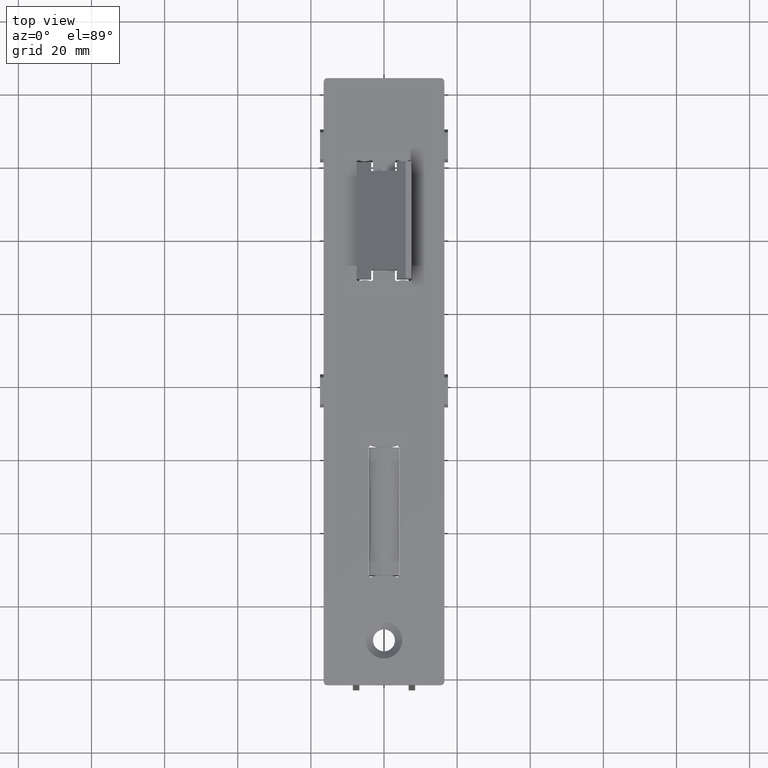
[diagram: clean part render]
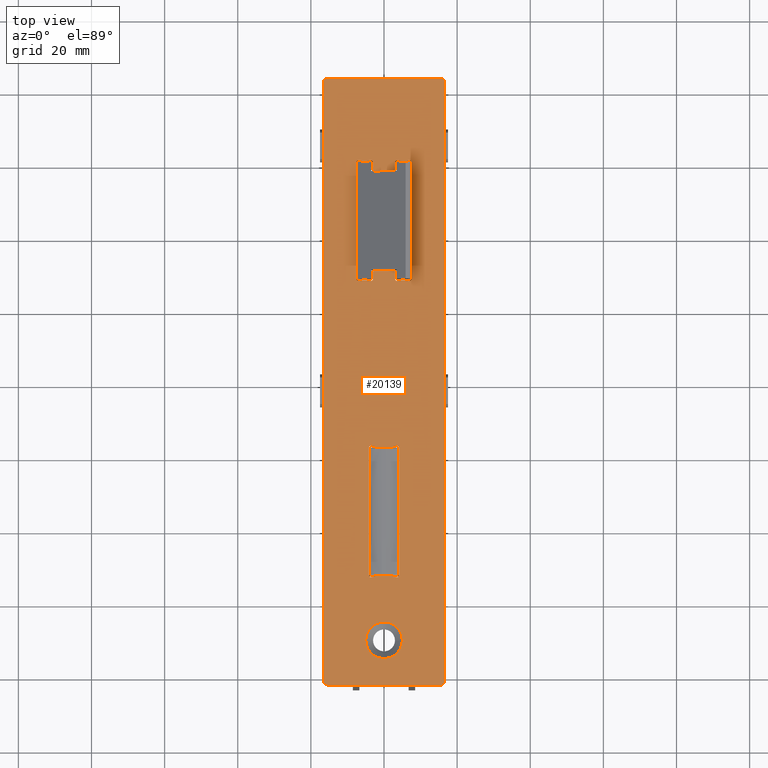
[diagram: same view with one face highlighted and labeled with its STEP entity id]
A machine part, top view. The second image highlights one B-rep face of the part: STEP entity #20139.
In plain terms, the highlighted planar face has unit normal (0, 0, 1).
Its self-contained STEP definition (entity closure, byte-faithful):
#24 = CARTESIAN_POINT ( 'NONE',  ( -3.000000000000000000, 30.12000000000002231, 1.500000000000000000 ) ) ;
#81 = DIRECTION ( 'NONE',  ( -1.000000000000000000, 0.000000000000000000, 0.000000000000000000 ) ) ;
#202 = VERTEX_POINT ( 'NONE', #19371 ) ;
#237 = DIRECTION ( 'NONE',  ( 1.000000000000000000, 0.000000000000000000, 0.000000000000000000 ) ) ;
#270 = AXIS2_PLACEMENT_3D ( 'NONE', #12204, #7760, #18419 ) ;
#287 = ORIENTED_EDGE ( 'NONE', *, *, #16663, .F. ) ;
#313 = CARTESIAN_POINT ( 'NONE',  ( -6.800000000000006040, 60.45913248941259610, 1.500000000000000000 ) ) ;
#333 = AXIS2_PLACEMENT_3D ( 'NONE', #15696, #3143, #9552 ) ;
#398 = EDGE_CURVE ( 'NONE', #13719, #17087, #12793, .T. ) ;
#440 = FACE_BOUND ( 'NONE', #13024, .T. ) ;
#589 = VECTOR ( 'NONE', #3154, 1000.000000000000000 ) ;
#638 = LINE ( 'NONE', #9338, #7911 ) ;
#720 = CARTESIAN_POINT ( 'NONE',  ( 0.000000000000000000, 0.000000000000000000, 1.500000000000000000 ) ) ;
#745 = AXIS2_PLACEMENT_3D ( 'NONE', #16177, #8530, #6921 ) ;
#761 = CARTESIAN_POINT ( 'NONE',  ( 2.700000000000001066, 57.87000000000002586, 1.500000000000000000 ) ) ;
#818 = CARTESIAN_POINT ( 'NONE',  ( -3.619999999999996110, -53.00499999999999545, 1.500000000000000000 ) ) ;
#839 = DIRECTION ( 'NONE',  ( 1.000000000000000000, 0.000000000000000000, 0.000000000000000000 ) ) ;
#894 = CIRCLE ( 'NONE', #7948, 0.2999999999999999334 ) ;
#895 = VERTEX_POINT ( 'NONE', #10533 ) ;
#902 = CARTESIAN_POINT ( 'NONE',  ( -3.474991485278918102, -17.52648925753080178, 1.500000000000000000 ) ) ;
#924 = AXIS2_PLACEMENT_3D ( 'NONE', #14307, #15828, #14108 ) ;
#947 = CARTESIAN_POINT ( 'NONE',  ( -5.300000000000005151, 64.58629237210178076, 1.500000000000000000 ) ) ;
#1000 = DIRECTION ( 'NONE',  ( 1.000000000000000000, 0.000000000000000000, 0.000000000000000000 ) ) ;
#1007 = DIRECTION ( 'NONE',  ( -0.000000000000000000, -0.000000000000000000, -1.000000000000000000 ) ) ;
#1165 = FACE_BOUND ( 'NONE', #4045, .T. ) ;
#1327 = CARTESIAN_POINT ( 'NONE',  ( 3.000000000000000000, 30.12000000000002231, 1.500000000000000000 ) ) ;
#1343 = CARTESIAN_POINT ( 'NONE',  ( 2.700000000000000178, 30.12000000000002231, 1.500000000000000000 ) ) ;
#1446 = CARTESIAN_POINT ( 'NONE',  ( 7.599999999999990763, 28.09130954904182076, 1.500000000000000000 ) ) ;
#1451 = VERTEX_POINT ( 'NONE', #14295 ) ;
#1475 = EDGE_CURVE ( 'NONE', #16140, #5855, #16350, .T. ) ;
#1486 = VERTEX_POINT ( 'NONE', #24 ) ;
#1534 = LINE ( 'NONE', #15567, #8620 ) ;
#1547 = CIRCLE ( 'NONE', #4762, 0.5963095490417917865 ) ;
#1565 = CARTESIAN_POINT ( 'NONE',  ( 4.119999999999996554, -18.00499999999996703, 1.500000000000000000 ) ) ;
#1581 = VERTEX_POINT ( 'NONE', #2110 ) ;
#1750 = CARTESIAN_POINT ( 'NONE',  ( -3.619999999999996110, -18.00499999999996703, 1.500000000000000000 ) ) ;
#1916 = CARTESIAN_POINT ( 'NONE',  ( -3.000000000000000000, 57.57000000000002160, 1.500000000000000000 ) ) ;
#1920 = DIRECTION ( 'NONE',  ( 1.000000000000000000, 0.000000000000000000, 0.000000000000000000 ) ) ;
#1990 = DIRECTION ( 'NONE',  ( 1.090767882666056980E-16, 1.000000000000000000, -0.000000000000000000 ) ) ;
#2086 = ORIENTED_EDGE ( 'NONE', *, *, #3440, .F. ) ;
#2110 = CARTESIAN_POINT ( 'NONE',  ( 15.49999999999998224, 83.00000000000001421, 1.500000000000000000 ) ) ;
#2155 = DIRECTION ( 'NONE',  ( 0.000000000000000000, 0.000000000000000000, 1.000000000000000000 ) ) ;
#2272 = CARTESIAN_POINT ( 'NONE',  ( 4.119999999999998330, -53.00499999999999545, 1.500000000000000000 ) ) ;
#2355 = ORIENTED_EDGE ( 'NONE', *, *, #9028, .F. ) ;
#2399 = EDGE_CURVE ( 'NONE', #13131, #8010, #13199, .T. ) ;
#2414 = EDGE_CURVE ( 'NONE', #6831, #3276, #16109, .T. ) ;
#2451 = DIRECTION ( 'NONE',  ( -0.9570214849383192890, 0.2900170294421592354, -0.000000000000000000 ) ) ;
#2468 = ORIENTED_EDGE ( 'NONE', *, *, #6575, .T. ) ;
#2557 = VECTOR ( 'NONE', #10401, 1000.000000000000000 ) ;
#2589 = DIRECTION ( 'NONE',  ( 1.000000000000000000, 0.000000000000000000, 0.000000000000000000 ) ) ;
#2646 = CARTESIAN_POINT ( 'NONE',  ( -3.000000000000000444, 57.87000000000002586, 1.500000000000000000 ) ) ;
#2706 = ORIENTED_EDGE ( 'NONE', *, *, #12242, .F. ) ;
#2714 = LINE ( 'NONE', #17606, #2951 ) ;
#2728 = EDGE_CURVE ( 'NONE', #6339, #8702, #4190, .T. ) ;
#2736 = VERTEX_POINT ( 'NONE', #8346 ) ;
#2752 = ORIENTED_EDGE ( 'NONE', *, *, #8784, .F. ) ;
#2859 = DIRECTION ( 'NONE',  ( -0.000000000000000000, -0.000000000000000000, -1.000000000000000000 ) ) ;
#2863 = EDGE_CURVE ( 'NONE', #8702, #1581, #6184, .T. ) ;
#2864 = CARTESIAN_POINT ( 'NONE',  ( -5.299999999999999822, 23.40370762789826387, 1.500000000000000000 ) ) ;
#2874 = CARTESIAN_POINT ( 'NONE',  ( 3.474991485278918102, -53.48351074246915715, 1.500000000000000000 ) ) ;
#2877 = CIRCLE ( 'NONE', #17483, 0.3000000000000031530 ) ;
#2951 = VECTOR ( 'NONE', #15858, 1000.000000000000000 ) ;
#3058 = CARTESIAN_POINT ( 'NONE',  ( -3.474991485278918990, -53.48351074246915715, 1.500000000000000000 ) ) ;
#3143 = DIRECTION ( 'NONE',  ( 0.000000000000000000, 0.000000000000000000, 1.000000000000000000 ) ) ;
#3154 = DIRECTION ( 'NONE',  ( -1.000000000000000000, -0.000000000000000000, -0.000000000000000000 ) ) ;
#3256 = LINE ( 'NONE', #13880, #13705 ) ;
#3260 = EDGE_CURVE ( 'NONE', #2736, #1486, #19963, .T. ) ;
#3276 = VERTEX_POINT ( 'NONE', #5341 ) ;
#3334 = LINE ( 'NONE', #16352, #4293 ) ;
#3440 = EDGE_CURVE ( 'NONE', #10630, #8923, #19697, .T. ) ;
#3501 = EDGE_LOOP ( 'NONE', ( #17685, #11899, #2468, #13106, #14168, #18304, #7254, #6393 ) ) ;
#3503 = VECTOR ( 'NONE', #7078, 1000.000000000000000 ) ;
#3559 = EDGE_CURVE ( 'NONE', #15692, #13719, #2714, .T. ) ;
#3606 = DIRECTION ( 'NONE',  ( -0.000000000000000000, 0.000000000000000000, 1.000000000000000000 ) ) ;
#3623 = VERTEX_POINT ( 'NONE', #17883 ) ;
#3650 = VERTEX_POINT ( 'NONE', #9003 ) ;
#3728 = EDGE_CURVE ( 'NONE', #18080, #1486, #10044, .T. ) ;
#3790 = AXIS2_PLACEMENT_3D ( 'NONE', #8404, #16107, #839 ) ;
#3854 = CARTESIAN_POINT ( 'NONE',  ( 16.49999999999998224, 82.00000000000001421, 1.500000000000000000 ) ) ;
#3890 = ORIENTED_EDGE ( 'NONE', *, *, #7780, .F. ) ;
#3919 = VERTEX_POINT ( 'NONE', #14625 ) ;
#3924 = AXIS2_PLACEMENT_3D ( 'NONE', #1343, #15336, #19720 ) ;
#3937 = ORIENTED_EDGE ( 'NONE', *, *, #20019, .F. ) ;
#3969 = VERTEX_POINT ( 'NONE', #1565 ) ;
#3982 = EDGE_CURVE ( 'NONE', #11996, #10630, #8544, .T. ) ;
#3992 = LINE ( 'NONE', #10322, #3503 ) ;
#4045 = EDGE_LOOP ( 'NONE', ( #13621 ) ) ;
#4068 = DIRECTION ( 'NONE',  ( -0.000000000000000000, 0.000000000000000000, 1.000000000000000000 ) ) ;
#4190 = LINE ( 'NONE', #11593, #17041 ) ;
#4249 = DIRECTION ( 'NONE',  ( -0.000000000000000000, 0.000000000000000000, 1.000000000000000000 ) ) ;
#4257 = AXIS2_PLACEMENT_3D ( 'NONE', #19431, #4249, #15120 ) ;
#4293 = VECTOR ( 'NONE', #18040, 1000.000000000000000 ) ;
#4311 = CIRCLE ( 'NONE', #18754, 0.3000000000000033751 ) ;
#4404 = AXIS2_PLACEMENT_3D ( 'NONE', #17528, #9658, #18977 ) ;
#4428 = DIRECTION ( 'NONE',  ( -0.000000000000000000, -0.000000000000000000, -1.000000000000000000 ) ) ;
#4462 = ORIENTED_EDGE ( 'NONE', *, *, #3728, .F. ) ;
#4520 = ORIENTED_EDGE ( 'NONE', *, *, #8696, .F. ) ;
#4530 = VECTOR ( 'NONE', #1990, 1000.000000000000000 ) ;
#4542 = AXIS2_PLACEMENT_3D ( 'NONE', #13038, #2155, #12955 ) ;
#4652 = ORIENTED_EDGE ( 'NONE', *, *, #11942, .F. ) ;
#4659 = DIRECTION ( 'NONE',  ( 1.000000000000000000, 0.000000000000000000, 0.000000000000000000 ) ) ;
#4762 = AXIS2_PLACEMENT_3D ( 'NONE', #12806, #18741, #14167 ) ;
#4782 = DIRECTION ( 'NONE',  ( -1.000000000000000000, 0.000000000000000000, 0.000000000000000000 ) ) ;
#4827 = CARTESIAN_POINT ( 'NONE',  ( 3.000000000000000000, 28.09130954904182076, 1.500000000000000000 ) ) ;
#4905 = DIRECTION ( 'NONE',  ( -1.000000000000000000, 0.000000000000000000, 0.000000000000000000 ) ) ;
#4918 = EDGE_CURVE ( 'NONE', #6140, #14810, #18956, .T. ) ;
#4978 = LINE ( 'NONE', #1916, #7649 ) ;
#5044 = CARTESIAN_POINT ( 'NONE',  ( 2.000000000000000000, -53.04999999999998295, 1.500000000000000000 ) ) ;
#5057 = ORIENTED_EDGE ( 'NONE', *, *, #6341, .F. ) ;
#5111 = EDGE_CURVE ( 'NONE', #3969, #18092, #15082, .T. ) ;
#5168 = VERTEX_POINT ( 'NONE', #14796 ) ;
#5292 = EDGE_CURVE ( 'NONE', #8923, #14062, #13508, .T. ) ;
#5293 = VERTEX_POINT ( 'NONE', #2272 ) ;
#5296 = DIRECTION ( 'NONE',  ( 1.000000000000000000, 0.000000000000000000, 0.000000000000000000 ) ) ;
#5341 = CARTESIAN_POINT ( 'NONE',  ( 2.087005108832647338, -53.06289355451848877, 1.500000000000000000 ) ) ;
#5352 = CARTESIAN_POINT ( 'NONE',  ( -2.087005108832646894, -53.06289355451848877, 1.500000000000000000 ) ) ;
#5405 = CARTESIAN_POINT ( 'NONE',  ( -4.119999999999998330, -18.00499999999996703, 1.500000000000000000 ) ) ;
#5409 = ORIENTED_EDGE ( 'NONE', *, *, #6783, .F. ) ;
#5443 = CARTESIAN_POINT ( 'NONE',  ( -3.474991485278918102, -17.52648925753080178, 1.500000000000000000 ) ) ;
#5511 = VERTEX_POINT ( 'NONE', #1446 ) ;
#5519 = AXIS2_PLACEMENT_3D ( 'NONE', #2864, #18305, #16865 ) ;
#5582 = CARTESIAN_POINT ( 'NONE',  ( -2.087005108832646005, -17.94710644548147371, 1.500000000000000000 ) ) ;
#5683 = EDGE_CURVE ( 'NONE', #2736, #18083, #9677, .T. ) ;
#5711 = EDGE_CURVE ( 'NONE', #5772, #14062, #894, .T. ) ;
#5745 = VECTOR ( 'NONE', #7172, 1000.000000000000000 ) ;
#5764 = CARTESIAN_POINT ( 'NONE',  ( -3.596309549041805997, 59.89869045095823452, 1.500000000000000000 ) ) ;
#5772 = VERTEX_POINT ( 'NONE', #18044 ) ;
#5778 = DIRECTION ( 'NONE',  ( 1.000000000000000000, 0.000000000000000000, 0.000000000000000000 ) ) ;
#5842 = CARTESIAN_POINT ( 'NONE',  ( -2.700000000000000622, 57.87000000000002586, 1.500000000000000000 ) ) ;
#5855 = VERTEX_POINT ( 'NONE', #8918 ) ;
#5934 = AXIS2_PLACEMENT_3D ( 'NONE', #17644, #9968, #1920 ) ;
#5935 = CARTESIAN_POINT ( 'NONE',  ( -3.800000000000005596, 60.45913248941259610, 1.500000000000000000 ) ) ;
#6075 = CARTESIAN_POINT ( 'NONE',  ( 16.50000000000000355, -81.99999999999998579, 1.500000000000000000 ) ) ;
#6140 = VERTEX_POINT ( 'NONE', #11540 ) ;
#6184 = CIRCLE ( 'NONE', #4257, 1.000000000000000888 ) ;
#6339 = VERTEX_POINT ( 'NONE', #6075 ) ;
#6341 = EDGE_CURVE ( 'NONE', #14520, #5293, #13539, .T. ) ;
#6360 = DIRECTION ( 'NONE',  ( 1.000000000000000000, 0.000000000000000000, 0.000000000000000000 ) ) ;
#6393 = ORIENTED_EDGE ( 'NONE', *, *, #2863, .T. ) ;
#6575 = EDGE_CURVE ( 'NONE', #3623, #11915, #9892, .T. ) ;
#6633 = CARTESIAN_POINT ( 'NONE',  ( -15.49999999999999645, -81.99999999999998579, 1.500000000000000000 ) ) ;
#6783 = EDGE_CURVE ( 'NONE', #7791, #15692, #14493, .T. ) ;
#6831 = VERTEX_POINT ( 'NONE', #5044 ) ;
#6840 = DIRECTION ( 'NONE',  ( -1.676104189520662668E-15, 1.000000000000000000, 0.000000000000000000 ) ) ;
#6882 = ORIENTED_EDGE ( 'NONE', *, *, #3559, .F. ) ;
#6921 = DIRECTION ( 'NONE',  ( 1.000000000000000000, 0.000000000000000000, 0.000000000000000000 ) ) ;
#6964 = LINE ( 'NONE', #16694, #12758 ) ;
#6980 = DIRECTION ( 'NONE',  ( 1.000000000000000000, 0.000000000000000000, 0.000000000000000000 ) ) ;
#7078 = DIRECTION ( 'NONE',  ( 1.090767882666056980E-16, -1.000000000000000000, 0.000000000000000000 ) ) ;
#7172 = DIRECTION ( 'NONE',  ( 1.254016970585643499E-16, -1.000000000000000000, 0.000000000000000000 ) ) ;
#7208 = LINE ( 'NONE', #2874, #19058 ) ;
#7254 = ORIENTED_EDGE ( 'NONE', *, *, #2728, .T. ) ;
#7348 = CARTESIAN_POINT ( 'NONE',  ( -6.800000000000005151, 27.53086751058746628, 1.500000000000000000 ) ) ;
#7349 = AXIS2_PLACEMENT_3D ( 'NONE', #5764, #10325, #10464 ) ;
#7376 = EDGE_CURVE ( 'NONE', #5168, #3623, #10112, .T. ) ;
#7591 = EDGE_CURVE ( 'NONE', #17377, #6831, #638, .T. ) ;
#7649 = VECTOR ( 'NONE', #6840, 1000.000000000000000 ) ;
#7715 = DIRECTION ( 'NONE',  ( 0.9570214849383192890, -0.2900170294421592354, -0.000000000000000000 ) ) ;
#7750 = FACE_BOUND ( 'NONE', #18141, .T. ) ;
#7760 = DIRECTION ( 'NONE',  ( 0.000000000000000000, 0.000000000000000000, 1.000000000000000000 ) ) ;
#7779 = DIRECTION ( 'NONE',  ( -0.000000000000000000, -0.000000000000000000, -1.000000000000000000 ) ) ;
#7780 = EDGE_CURVE ( 'NONE', #15571, #16140, #20040, .T. ) ;
#7788 = AXIS2_PLACEMENT_3D ( 'NONE', #720, #9932, #5296 ) ;
#7791 = VERTEX_POINT ( 'NONE', #5443 ) ;
#7840 = CARTESIAN_POINT ( 'NONE',  ( -3.000000000000003997, 59.89869045095823452, 1.500000000000000000 ) ) ;
#7854 = ORIENTED_EDGE ( 'NONE', *, *, #11644, .F. ) ;
#7911 = VECTOR ( 'NONE', #4659, 1000.000000000000000 ) ;
#7948 = AXIS2_PLACEMENT_3D ( 'NONE', #761, #16290, #2589 ) ;
#8010 = VERTEX_POINT ( 'NONE', #313 ) ;
#8085 = VERTEX_POINT ( 'NONE', #5352 ) ;
#8171 = CARTESIAN_POINT ( 'NONE',  ( -3.800000000000000266, 27.53086751058745918, 1.500000000000000000 ) ) ;
#8177 = ORIENTED_EDGE ( 'NONE', *, *, #2414, .F. ) ;
#8187 = LINE ( 'NONE', #9765, #4530 ) ;
#8193 = DIRECTION ( 'NONE',  ( 1.000000000000000000, 0.000000000000000000, 0.000000000000000000 ) ) ;
#8196 = CIRCLE ( 'NONE', #5519, 4.391292372101758268 ) ;
#8227 = ORIENTED_EDGE ( 'NONE', *, *, #14823, .T. ) ;
#8233 = EDGE_CURVE ( 'NONE', #895, #6339, #16384, .T. ) ;
#8278 = CARTESIAN_POINT ( 'NONE',  ( 7.003690450958194980, 59.89869045095823452, 1.500000000000000000 ) ) ;
#8287 = AXIS2_PLACEMENT_3D ( 'NONE', #818, #11678, #8835 ) ;
#8346 = CARTESIAN_POINT ( 'NONE',  ( -2.700000000000000178, 30.42000000000002302, 1.500000000000000000 ) ) ;
#8389 = VERTEX_POINT ( 'NONE', #16991 ) ;
#8390 = EDGE_CURVE ( 'NONE', #8010, #11742, #12526, .T. ) ;
#8401 = ORIENTED_EDGE ( 'NONE', *, *, #5111, .F. ) ;
#8404 = CARTESIAN_POINT ( 'NONE',  ( -15.50000000000001776, 82.00000000000001421, 1.500000000000000000 ) ) ;
#8461 = ORIENTED_EDGE ( 'NONE', *, *, #10407, .F. ) ;
#8530 = DIRECTION ( 'NONE',  ( -0.000000000000000000, 0.000000000000000000, 1.000000000000000000 ) ) ;
#8544 = CIRCLE ( 'NONE', #18152, 4.391292372101755603 ) ;
#8620 = VECTOR ( 'NONE', #9960, 1000.000000000000000 ) ;
#8696 = EDGE_CURVE ( 'NONE', #11742, #6140, #3992, .T. ) ;
#8702 = VERTEX_POINT ( 'NONE', #3854 ) ;
#8782 = CARTESIAN_POINT ( 'NONE',  ( -3.000000000000000000, 30.42000000000002302, 1.500000000000000000 ) ) ;
#8784 = EDGE_CURVE ( 'NONE', #5293, #3969, #6964, .T. ) ;
#8835 = DIRECTION ( 'NONE',  ( 1.000000000000000000, 0.000000000000000000, 0.000000000000000000 ) ) ;
#8874 = CARTESIAN_POINT ( 'NONE',  ( 6.799999999999997158, 60.45913248941258900, 1.500000000000000000 ) ) ;
#8918 = CARTESIAN_POINT ( 'NONE',  ( 3.800000000000000711, 27.53086751058745918, 1.500000000000000000 ) ) ;
#8923 = VERTEX_POINT ( 'NONE', #18617 ) ;
#8933 = EDGE_CURVE ( 'NONE', #1451, #18133, #17562, .T. ) ;
#8985 = CARTESIAN_POINT ( 'NONE',  ( 2.700000000000000178, 30.42000000000002302, 1.500000000000000000 ) ) ;
#9003 = CARTESIAN_POINT ( 'NONE',  ( 2.087005108832646894, -17.94710644548147371, 1.500000000000000000 ) ) ;
#9028 = EDGE_CURVE ( 'NONE', #5855, #8389, #9083, .T. ) ;
#9083 = CIRCLE ( 'NONE', #17545, 4.391292372101758268 ) ;
#9149 = DIRECTION ( 'NONE',  ( -0.000000000000000000, 1.000000000000000000, -0.000000000000000000 ) ) ;
#9150 = AXIS2_PLACEMENT_3D ( 'NONE', #10159, #10218, #19590 ) ;
#9190 = CARTESIAN_POINT ( 'NONE',  ( -4.119999999999996554, -53.00499999999999545, 1.500000000000000000 ) ) ;
#9272 = EDGE_CURVE ( 'NONE', #1581, #5168, #3256, .T. ) ;
#9338 = CARTESIAN_POINT ( 'NONE',  ( -2.000000000000000000, -53.04999999999998295, 1.500000000000000000 ) ) ;
#9366 = AXIS2_PLACEMENT_3D ( 'NONE', #10283, #19595, #1000 ) ;
#9459 = CIRCLE ( 'NONE', #3924, 0.2999999999999999334 ) ;
#9473 = CARTESIAN_POINT ( 'NONE',  ( 15.50000000000000355, -81.99999999999998579, 1.500000000000000000 ) ) ;
#9552 = DIRECTION ( 'NONE',  ( -1.000000000000000000, 0.000000000000000000, 0.000000000000000000 ) ) ;
#9629 = CARTESIAN_POINT ( 'NONE',  ( 5.299999999999999822, 23.40370762789826387, 1.500000000000000000 ) ) ;
#9658 = DIRECTION ( 'NONE',  ( 0.000000000000000000, 0.000000000000000000, 1.000000000000000000 ) ) ;
#9662 = ORIENTED_EDGE ( 'NONE', *, *, #13898, .F. ) ;
#9677 = LINE ( 'NONE', #8782, #13295 ) ;
#9765 = CARTESIAN_POINT ( 'NONE',  ( 7.599999999999984546, 59.89869045095823452, 1.500000000000000000 ) ) ;
#9823 = EDGE_CURVE ( 'NONE', #202, #202, #11496, .T. ) ;
#9892 = LINE ( 'NONE', #17839, #5745 ) ;
#9909 = CARTESIAN_POINT ( 'NONE',  ( 3.799999999999995826, 60.45913248941259610, 1.500000000000000000 ) ) ;
#9914 = CIRCLE ( 'NONE', #9150, 0.3000000000000033751 ) ;
#9932 = DIRECTION ( 'NONE',  ( -0.000000000000000000, 0.000000000000000000, 1.000000000000000000 ) ) ;
#9960 = DIRECTION ( 'NONE',  ( -0.9570214849383192890, -0.2900170294421592354, 0.000000000000000000 ) ) ;
#9968 = DIRECTION ( 'NONE',  ( 0.000000000000000000, 0.000000000000000000, 1.000000000000000000 ) ) ;
#10004 = EDGE_CURVE ( 'NONE', #16511, #895, #3334, .T. ) ;
#10044 = LINE ( 'NONE', #19638, #11688 ) ;
#10052 = ORIENTED_EDGE ( 'NONE', *, *, #5683, .F. ) ;
#10112 = CIRCLE ( 'NONE', #3790, 1.000000000000000888 ) ;
#10159 = CARTESIAN_POINT ( 'NONE',  ( -2.000000000000000000, -17.65999999999997527, 1.500000000000000000 ) ) ;
#10218 = DIRECTION ( 'NONE',  ( -0.000000000000000000, -0.000000000000000000, -1.000000000000000000 ) ) ;
#10270 = EDGE_CURVE ( 'NONE', #15571, #18083, #9459, .T. ) ;
#10283 = CARTESIAN_POINT ( 'NONE',  ( -7.003690450958198532, 28.09130954904182076, 1.500000000000000000 ) ) ;
#10322 = CARTESIAN_POINT ( 'NONE',  ( -7.599999999999984546, 59.89869045095823452, 1.500000000000000000 ) ) ;
#10325 = DIRECTION ( 'NONE',  ( 0.000000000000000000, 0.000000000000000000, 1.000000000000000000 ) ) ;
#10329 = VECTOR ( 'NONE', #13691, 1000.000000000000000 ) ;
#10399 = DIRECTION ( 'NONE',  ( -0.000000000000000000, 1.000000000000000000, -0.000000000000000000 ) ) ;
#10401 = DIRECTION ( 'NONE',  ( 0.9570214849383192890, 0.2900170294421592354, 0.000000000000000000 ) ) ;
#10407 = EDGE_CURVE ( 'NONE', #13565, #11996, #16928, .T. ) ;
#10411 = CARTESIAN_POINT ( 'NONE',  ( -2.000000000000000000, -53.04999999999998295, 1.500000000000000000 ) ) ;
#10442 = EDGE_CURVE ( 'NONE', #18242, #13131, #17178, .T. ) ;
#10464 = DIRECTION ( 'NONE',  ( -1.000000000000000000, 0.000000000000000000, 0.000000000000000000 ) ) ;
#10533 = CARTESIAN_POINT ( 'NONE',  ( 15.50000000000000355, -82.99999999999998579, 1.500000000000000000 ) ) ;
#10609 = CIRCLE ( 'NONE', #5934, 0.5963095490418013345 ) ;
#10630 = VERTEX_POINT ( 'NONE', #9909 ) ;
#11008 = AXIS2_PLACEMENT_3D ( 'NONE', #6633, #17438, #8193 ) ;
#11186 = DIRECTION ( 'NONE',  ( -0.000000000000000000, -0.000000000000000000, -1.000000000000000000 ) ) ;
#11313 = DIRECTION ( 'NONE',  ( -0.000000000000000000, -0.000000000000000000, -1.000000000000000000 ) ) ;
#11345 = EDGE_CURVE ( 'NONE', #3650, #1451, #4311, .T. ) ;
#11456 = ORIENTED_EDGE ( 'NONE', *, *, #7591, .F. ) ;
#11496 = CIRCLE ( 'NONE', #924, 5.000000000000000000 ) ;
#11540 = CARTESIAN_POINT ( 'NONE',  ( -7.599999999999980993, 28.09130954904182076, 1.500000000000000000 ) ) ;
#11557 = VERTEX_POINT ( 'NONE', #8171 ) ;
#11583 = CARTESIAN_POINT ( 'NONE',  ( 3.474991485278918102, -53.48351074246915715, 1.500000000000000000 ) ) ;
#11593 = CARTESIAN_POINT ( 'NONE',  ( 16.49999999999998224, 83.00000000000001421, 1.500000000000000000 ) ) ;
#11644 = EDGE_CURVE ( 'NONE', #18133, #13500, #9914, .T. ) ;
#11678 = DIRECTION ( 'NONE',  ( 0.000000000000000000, 0.000000000000000000, 1.000000000000000000 ) ) ;
#11688 = VECTOR ( 'NONE', #10399, 1000.000000000000000 ) ;
#11730 = ORIENTED_EDGE ( 'NONE', *, *, #15289, .F. ) ;
#11742 = VERTEX_POINT ( 'NONE', #15657 ) ;
#11754 = ORIENTED_EDGE ( 'NONE', *, *, #3982, .F. ) ;
#11899 = ORIENTED_EDGE ( 'NONE', *, *, #7376, .T. ) ;
#11915 = VERTEX_POINT ( 'NONE', #13424 ) ;
#11942 = EDGE_CURVE ( 'NONE', #17087, #8085, #14040, .T. ) ;
#11956 = ORIENTED_EDGE ( 'NONE', *, *, #16691, .F. ) ;
#11990 = ORIENTED_EDGE ( 'NONE', *, *, #2399, .F. ) ;
#11996 = VERTEX_POINT ( 'NONE', #8874 ) ;
#12112 = CARTESIAN_POINT ( 'NONE',  ( -15.49999999999999645, -82.99999999999998579, 1.500000000000000000 ) ) ;
#12147 = CARTESIAN_POINT ( 'NONE',  ( 2.000000000000000000, -53.34999999999998721, 1.500000000000000000 ) ) ;
#12204 = CARTESIAN_POINT ( 'NONE',  ( -7.003690450958202085, 59.89869045095823452, 1.500000000000000000 ) ) ;
#12242 = EDGE_CURVE ( 'NONE', #5511, #13565, #8187, .T. ) ;
#12339 = EDGE_CURVE ( 'NONE', #13500, #7791, #12800, .T. ) ;
#12375 = CARTESIAN_POINT ( 'NONE',  ( 5.299999999999994493, 64.58629237210178076, 1.500000000000000000 ) ) ;
#12526 = CIRCLE ( 'NONE', #270, 0.5963095490417892330 ) ;
#12621 = ORIENTED_EDGE ( 'NONE', *, *, #1475, .F. ) ;
#12644 = EDGE_CURVE ( 'NONE', #3276, #14520, #7208, .T. ) ;
#12699 = ORIENTED_EDGE ( 'NONE', *, *, #12644, .F. ) ;
#12758 = VECTOR ( 'NONE', #9149, 1000.000000000000000 ) ;
#12793 = CIRCLE ( 'NONE', #8287, 0.5000000000000022204 ) ;
#12800 = LINE ( 'NONE', #902, #19074 ) ;
#12806 = CARTESIAN_POINT ( 'NONE',  ( 7.003690450958198532, 28.09130954904182076, 1.500000000000000000 ) ) ;
#12915 = DIRECTION ( 'NONE',  ( 0.000000000000000000, -1.000000000000000000, 0.000000000000000000 ) ) ;
#12946 = ORIENTED_EDGE ( 'NONE', *, *, #4918, .F. ) ;
#12955 = DIRECTION ( 'NONE',  ( 1.000000000000000000, 0.000000000000000000, 0.000000000000000000 ) ) ;
#13018 = AXIS2_PLACEMENT_3D ( 'NONE', #1750, #15802, #4782 ) ;
#13024 = EDGE_LOOP ( 'NONE', ( #8177, #11456, #3937, #4652, #18532, #6882, #5409, #16261, #7854, #17143, #18727, #287, #8401, #2752, #5057, #12699 ) ) ;
#13038 = CARTESIAN_POINT ( 'NONE',  ( 3.596309549041798448, 59.89869045095823452, 1.500000000000000000 ) ) ;
#13077 = AXIS2_PLACEMENT_3D ( 'NONE', #5842, #4068, #5778 ) ;
#13094 = FACE_OUTER_BOUND ( 'NONE', #3501, .T. ) ;
#13106 = ORIENTED_EDGE ( 'NONE', *, *, #15309, .T. ) ;
#13131 = VERTEX_POINT ( 'NONE', #5935 ) ;
#13173 = ORIENTED_EDGE ( 'NONE', *, *, #10270, .T. ) ;
#13199 = CIRCLE ( 'NONE', #16814, 4.391292372101755603 ) ;
#13264 = VECTOR ( 'NONE', #12915, 1000.000000000000000 ) ;
#13295 = VECTOR ( 'NONE', #19618, 1000.000000000000000 ) ;
#13424 = CARTESIAN_POINT ( 'NONE',  ( -16.49999999999999645, -81.99999999999998579, 1.500000000000000000 ) ) ;
#13496 = DIRECTION ( 'NONE',  ( 1.000000000000000000, 0.000000000000000000, 0.000000000000000000 ) ) ;
#13500 = VERTEX_POINT ( 'NONE', #5582 ) ;
#13508 = LINE ( 'NONE', #14729, #10329 ) ;
#13539 = CIRCLE ( 'NONE', #17519, 0.5000000000000022204 ) ;
#13565 = VERTEX_POINT ( 'NONE', #18102 ) ;
#13621 = ORIENTED_EDGE ( 'NONE', *, *, #9823, .F. ) ;
#13663 = ORIENTED_EDGE ( 'NONE', *, *, #3260, .T. ) ;
#13691 = DIRECTION ( 'NONE',  ( -1.676104189520662668E-15, -1.000000000000000000, -0.000000000000000000 ) ) ;
#13705 = VECTOR ( 'NONE', #18313, 1000.000000000000000 ) ;
#13719 = VERTEX_POINT ( 'NONE', #9190 ) ;
#13880 = CARTESIAN_POINT ( 'NONE',  ( -16.50000000000001776, 83.00000000000001421, 1.500000000000000000 ) ) ;
#13898 = EDGE_CURVE ( 'NONE', #5772, #3919, #17533, .T. ) ;
#14034 = ORIENTED_EDGE ( 'NONE', *, *, #5292, .F. ) ;
#14040 = LINE ( 'NONE', #19640, #2557 ) ;
#14062 = VERTEX_POINT ( 'NONE', #16840 ) ;
#14108 = DIRECTION ( 'NONE',  ( 1.000000000000000000, 0.000000000000000000, 0.000000000000000000 ) ) ;
#14167 = DIRECTION ( 'NONE',  ( -1.000000000000000000, 0.000000000000000000, 0.000000000000000000 ) ) ;
#14168 = ORIENTED_EDGE ( 'NONE', *, *, #10004, .T. ) ;
#14272 = DIRECTION ( 'NONE',  ( 0.000000000000000000, 0.000000000000000000, 1.000000000000000000 ) ) ;
#14295 = CARTESIAN_POINT ( 'NONE',  ( 2.000000000000000000, -17.95999999999997598, 1.500000000000000000 ) ) ;
#14307 = CARTESIAN_POINT ( 'NONE',  ( -6.123233995736828898E-17, -70.75000000000001421, 1.500000000000000000 ) ) ;
#14309 = DIRECTION ( 'NONE',  ( 1.000000000000000000, 0.000000000000000000, 0.000000000000000000 ) ) ;
#14314 = CARTESIAN_POINT ( 'NONE',  ( -2.000000000000000000, -53.34999999999998721, 1.500000000000000000 ) ) ;
#14396 = EDGE_CURVE ( 'NONE', #14810, #11557, #8196, .T. ) ;
#14493 = CIRCLE ( 'NONE', #13018, 0.5000000000000026645 ) ;
#14520 = VERTEX_POINT ( 'NONE', #11583 ) ;
#14625 = CARTESIAN_POINT ( 'NONE',  ( -2.700000000000000622, 57.57000000000002160, 1.500000000000000000 ) ) ;
#14729 = CARTESIAN_POINT ( 'NONE',  ( 3.000000000000000000, 57.57000000000002160, 1.500000000000000000 ) ) ;
#14796 = CARTESIAN_POINT ( 'NONE',  ( -15.50000000000001776, 83.00000000000001421, 1.500000000000000000 ) ) ;
#14801 = DIRECTION ( 'NONE',  ( -1.254016970585643499E-16, 1.000000000000000000, -0.000000000000000000 ) ) ;
#14810 = VERTEX_POINT ( 'NONE', #7348 ) ;
#14823 = EDGE_CURVE ( 'NONE', #18015, #3919, #18335, .T. ) ;
#14849 = PLANE ( 'NONE',  #7788 ) ;
#15082 = CIRCLE ( 'NONE', #4404, 0.5000000000000026645 ) ;
#15120 = DIRECTION ( 'NONE',  ( 1.000000000000000000, 0.000000000000000000, 0.000000000000000000 ) ) ;
#15240 = ORIENTED_EDGE ( 'NONE', *, *, #5711, .T. ) ;
#15246 = AXIS2_PLACEMENT_3D ( 'NONE', #9473, #3606, #15684 ) ;
#15289 = EDGE_CURVE ( 'NONE', #8389, #5511, #1547, .T. ) ;
#15309 = EDGE_CURVE ( 'NONE', #11915, #16511, #19267, .T. ) ;
#15336 = DIRECTION ( 'NONE',  ( -0.000000000000000000, 0.000000000000000000, 1.000000000000000000 ) ) ;
#15375 = CARTESIAN_POINT ( 'NONE',  ( -2.000000000000000000, -17.95999999999997598, 1.500000000000000000 ) ) ;
#15482 = ORIENTED_EDGE ( 'NONE', *, *, #17874, .F. ) ;
#15567 = CARTESIAN_POINT ( 'NONE',  ( 3.474991485278918102, -17.52648925753080178, 1.500000000000000000 ) ) ;
#15571 = VERTEX_POINT ( 'NONE', #1327 ) ;
#15657 = CARTESIAN_POINT ( 'NONE',  ( -7.599999999999991651, 59.89869045095823452, 1.500000000000000000 ) ) ;
#15684 = DIRECTION ( 'NONE',  ( 1.000000000000000000, 0.000000000000000000, 0.000000000000000000 ) ) ;
#15692 = VERTEX_POINT ( 'NONE', #5405 ) ;
#15696 = CARTESIAN_POINT ( 'NONE',  ( 3.596309549041802445, 28.09130954904182076, 1.500000000000000000 ) ) ;
#15724 = ORIENTED_EDGE ( 'NONE', *, *, #14396, .F. ) ;
#15802 = DIRECTION ( 'NONE',  ( 0.000000000000000000, 0.000000000000000000, 1.000000000000000000 ) ) ;
#15828 = DIRECTION ( 'NONE',  ( -0.000000000000000000, -0.000000000000000000, 1.000000000000000000 ) ) ;
#15858 = DIRECTION ( 'NONE',  ( 0.000000000000000000, -1.000000000000000000, 0.000000000000000000 ) ) ;
#15860 = CARTESIAN_POINT ( 'NONE',  ( 3.619999999999996110, -53.00499999999999545, 1.500000000000000000 ) ) ;
#16001 = CARTESIAN_POINT ( 'NONE',  ( -3.000000000000000000, 57.57000000000002160, 1.500000000000000000 ) ) ;
#16107 = DIRECTION ( 'NONE',  ( -0.000000000000000000, 0.000000000000000000, 1.000000000000000000 ) ) ;
#16109 = CIRCLE ( 'NONE', #17898, 0.3000000000000031530 ) ;
#16140 = VERTEX_POINT ( 'NONE', #4827 ) ;
#16177 = CARTESIAN_POINT ( 'NONE',  ( -2.700000000000000178, 30.12000000000002231, 1.500000000000000000 ) ) ;
#16261 = ORIENTED_EDGE ( 'NONE', *, *, #12339, .F. ) ;
#16290 = DIRECTION ( 'NONE',  ( -0.000000000000000000, 0.000000000000000000, 1.000000000000000000 ) ) ;
#16350 = CIRCLE ( 'NONE', #333, 0.5963095490418013345 ) ;
#16352 = CARTESIAN_POINT ( 'NONE',  ( -16.49999999999999645, -82.99999999999998579, 1.500000000000000000 ) ) ;
#16384 = CIRCLE ( 'NONE', #15246, 1.000000000000000888 ) ;
#16511 = VERTEX_POINT ( 'NONE', #12112 ) ;
#16590 = DIRECTION ( 'NONE',  ( -1.000000000000000000, 0.000000000000000000, 0.000000000000000000 ) ) ;
#16663 = EDGE_CURVE ( 'NONE', #18092, #3650, #1534, .T. ) ;
#16691 = EDGE_CURVE ( 'NONE', #18015, #18242, #4978, .T. ) ;
#16694 = CARTESIAN_POINT ( 'NONE',  ( 4.119999999999996554, -18.00499999999996703, 1.500000000000000000 ) ) ;
#16814 = AXIS2_PLACEMENT_3D ( 'NONE', #947, #1007, #6980 ) ;
#16840 = CARTESIAN_POINT ( 'NONE',  ( 3.000000000000000444, 57.87000000000002586, 1.500000000000000000 ) ) ;
#16865 = DIRECTION ( 'NONE',  ( -1.000000000000000000, 0.000000000000000000, 0.000000000000000000 ) ) ;
#16928 = CIRCLE ( 'NONE', #19142, 0.5963095490417935629 ) ;
#16991 = CARTESIAN_POINT ( 'NONE',  ( 6.800000000000000711, 27.53086751058745918, 1.500000000000000000 ) ) ;
#17041 = VECTOR ( 'NONE', #14801, 1000.000000000000000 ) ;
#17087 = VERTEX_POINT ( 'NONE', #3058 ) ;
#17143 = ORIENTED_EDGE ( 'NONE', *, *, #8933, .F. ) ;
#17178 = CIRCLE ( 'NONE', #7349, 0.5963095490417991140 ) ;
#17377 = VERTEX_POINT ( 'NONE', #10411 ) ;
#17427 = CARTESIAN_POINT ( 'NONE',  ( 2.000000000000000000, -17.65999999999997527, 1.500000000000000000 ) ) ;
#17438 = DIRECTION ( 'NONE',  ( -0.000000000000000000, 0.000000000000000000, 1.000000000000000000 ) ) ;
#17483 = AXIS2_PLACEMENT_3D ( 'NONE', #14314, #11313, #237 ) ;
#17519 = AXIS2_PLACEMENT_3D ( 'NONE', #15860, #14272, #4905 ) ;
#17528 = CARTESIAN_POINT ( 'NONE',  ( 3.619999999999996110, -18.00499999999996703, 1.500000000000000000 ) ) ;
#17533 = LINE ( 'NONE', #16001, #18764 ) ;
#17539 = DIRECTION ( 'NONE',  ( -1.000000000000000000, -0.000000000000000000, -0.000000000000000000 ) ) ;
#17545 = AXIS2_PLACEMENT_3D ( 'NONE', #9629, #11186, #14309 ) ;
#17562 = LINE ( 'NONE', #15375, #589 ) ;
#17606 = CARTESIAN_POINT ( 'NONE',  ( -4.119999999999996554, -18.00499999999996703, 1.500000000000000000 ) ) ;
#17644 = CARTESIAN_POINT ( 'NONE',  ( -3.596309549041802445, 28.09130954904182076, 1.500000000000000000 ) ) ;
#17685 = ORIENTED_EDGE ( 'NONE', *, *, #9272, .T. ) ;
#17839 = CARTESIAN_POINT ( 'NONE',  ( -16.50000000000001776, 83.00000000000001421, 1.500000000000000000 ) ) ;
#17874 = EDGE_CURVE ( 'NONE', #11557, #18080, #10609, .T. ) ;
#17883 = CARTESIAN_POINT ( 'NONE',  ( -16.50000000000001776, 82.00000000000001421, 1.500000000000000000 ) ) ;
#17898 = AXIS2_PLACEMENT_3D ( 'NONE', #12147, #2859, #16590 ) ;
#18015 = VERTEX_POINT ( 'NONE', #2646 ) ;
#18040 = DIRECTION ( 'NONE',  ( 1.000000000000000000, 0.000000000000000000, 0.000000000000000000 ) ) ;
#18044 = CARTESIAN_POINT ( 'NONE',  ( 2.700000000000001066, 57.57000000000002160, 1.500000000000000000 ) ) ;
#18080 = VERTEX_POINT ( 'NONE', #20107 ) ;
#18083 = VERTEX_POINT ( 'NONE', #8985 ) ;
#18092 = VERTEX_POINT ( 'NONE', #19886 ) ;
#18102 = CARTESIAN_POINT ( 'NONE',  ( 7.599999999999984546, 59.89869045095823452, 1.500000000000000000 ) ) ;
#18133 = VERTEX_POINT ( 'NONE', #20029 ) ;
#18141 = EDGE_LOOP ( 'NONE', ( #11956, #8227, #9662, #15240, #14034, #2086, #11754, #8461, #2706, #11730, #2355, #12621, #3890, #13173, #10052, #13663, #4462, #15482, #15724, #12946, #4520, #19733, #11990, #18663 ) ) ;
#18152 = AXIS2_PLACEMENT_3D ( 'NONE', #12375, #4428, #81 ) ;
#18242 = VERTEX_POINT ( 'NONE', #7840 ) ;
#18304 = ORIENTED_EDGE ( 'NONE', *, *, #8233, .T. ) ;
#18305 = DIRECTION ( 'NONE',  ( -0.000000000000000000, -0.000000000000000000, -1.000000000000000000 ) ) ;
#18313 = DIRECTION ( 'NONE',  ( -1.000000000000000000, -0.000000000000000000, -0.000000000000000000 ) ) ;
#18335 = CIRCLE ( 'NONE', #13077, 0.2999999999999999334 ) ;
#18419 = DIRECTION ( 'NONE',  ( -1.000000000000000000, 0.000000000000000000, 0.000000000000000000 ) ) ;
#18532 = ORIENTED_EDGE ( 'NONE', *, *, #398, .F. ) ;
#18617 = CARTESIAN_POINT ( 'NONE',  ( 3.000000000000002665, 59.89869045095823452, 1.500000000000000000 ) ) ;
#18663 = ORIENTED_EDGE ( 'NONE', *, *, #10442, .F. ) ;
#18727 = ORIENTED_EDGE ( 'NONE', *, *, #11345, .F. ) ;
#18741 = DIRECTION ( 'NONE',  ( 0.000000000000000000, 0.000000000000000000, 1.000000000000000000 ) ) ;
#18754 = AXIS2_PLACEMENT_3D ( 'NONE', #17427, #7779, #6360 ) ;
#18764 = VECTOR ( 'NONE', #17539, 1000.000000000000000 ) ;
#18945 = CARTESIAN_POINT ( 'NONE',  ( 3.000000000000000000, 30.42000000000002302, 1.500000000000000000 ) ) ;
#18956 = CIRCLE ( 'NONE', #9366, 0.5963095490417917865 ) ;
#18977 = DIRECTION ( 'NONE',  ( 1.000000000000000000, 0.000000000000000000, 0.000000000000000000 ) ) ;
#19058 = VECTOR ( 'NONE', #7715, 1000.000000000000000 ) ;
#19074 = VECTOR ( 'NONE', #2451, 1000.000000000000000 ) ;
#19142 = AXIS2_PLACEMENT_3D ( 'NONE', #8278, #19429, #13496 ) ;
#19267 = CIRCLE ( 'NONE', #11008, 1.000000000000000888 ) ;
#19371 = CARTESIAN_POINT ( 'NONE',  ( 5.000000000000000000, -70.75000000000001421, 1.500000000000000000 ) ) ;
#19429 = DIRECTION ( 'NONE',  ( 0.000000000000000000, 0.000000000000000000, 1.000000000000000000 ) ) ;
#19431 = CARTESIAN_POINT ( 'NONE',  ( 15.49999999999998224, 82.00000000000001421, 1.500000000000000000 ) ) ;
#19590 = DIRECTION ( 'NONE',  ( -1.000000000000000000, 0.000000000000000000, 0.000000000000000000 ) ) ;
#19595 = DIRECTION ( 'NONE',  ( 0.000000000000000000, 0.000000000000000000, 1.000000000000000000 ) ) ;
#19618 = DIRECTION ( 'NONE',  ( 1.000000000000000000, 0.000000000000000000, 0.000000000000000000 ) ) ;
#19638 = CARTESIAN_POINT ( 'NONE',  ( -3.000000000000000000, 30.42000000000002302, 1.500000000000000000 ) ) ;
#19640 = CARTESIAN_POINT ( 'NONE',  ( -3.474991485278918102, -53.48351074246915715, 1.500000000000000000 ) ) ;
#19697 = CIRCLE ( 'NONE', #4542, 0.5963095490417956723 ) ;
#19720 = DIRECTION ( 'NONE',  ( 1.000000000000000000, 0.000000000000000000, 0.000000000000000000 ) ) ;
#19733 = ORIENTED_EDGE ( 'NONE', *, *, #8390, .F. ) ;
#19886 = CARTESIAN_POINT ( 'NONE',  ( 3.474991485278918990, -17.52648925753080178, 1.500000000000000000 ) ) ;
#19963 = CIRCLE ( 'NONE', #745, 0.2999999999999999334 ) ;
#20019 = EDGE_CURVE ( 'NONE', #8085, #17377, #2877, .T. ) ;
#20029 = CARTESIAN_POINT ( 'NONE',  ( -2.000000000000000000, -17.95999999999997598, 1.500000000000000000 ) ) ;
#20040 = LINE ( 'NONE', #18945, #13264 ) ;
#20107 = CARTESIAN_POINT ( 'NONE',  ( -3.000000000000000888, 28.09130954904182076, 1.500000000000000000 ) ) ;
#20139 = ADVANCED_FACE ( 'NONE', ( #1165, #7750, #440, #13094 ), #14849, .T. ) ;